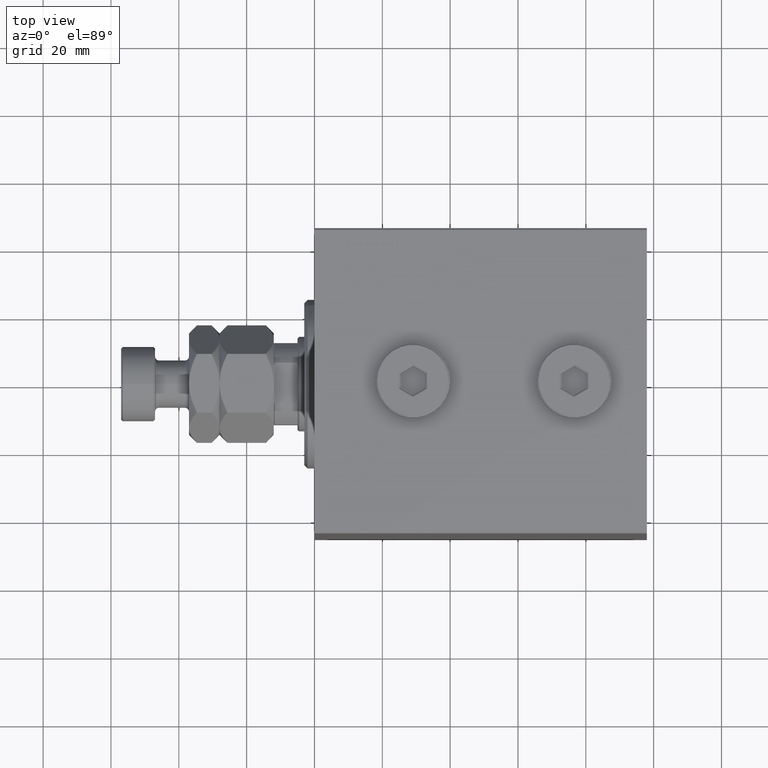
[diagram: clean part render]
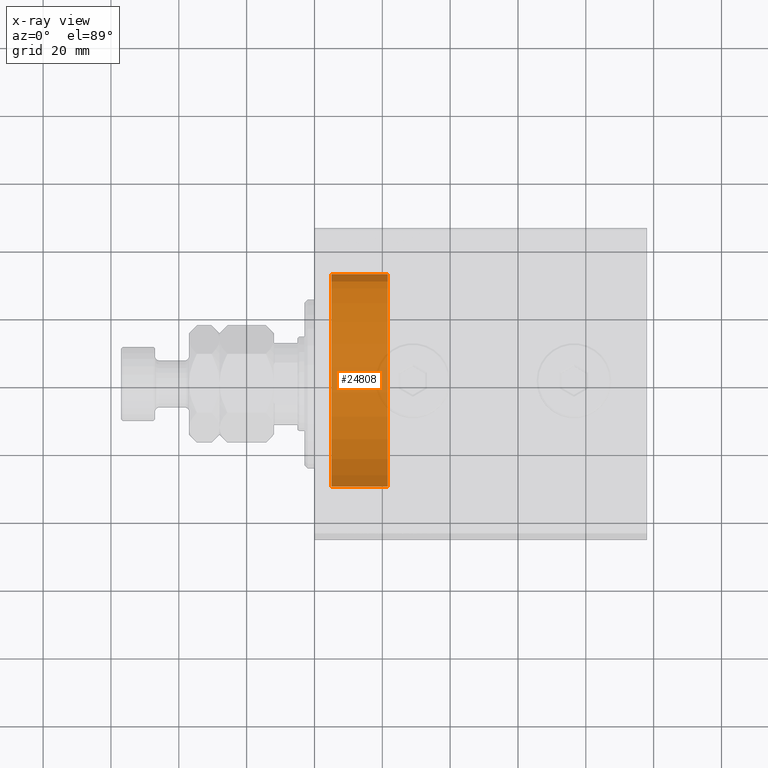
[diagram: x-ray — body ghosted, one internal face saturated and labeled with its STEP entity id]
A machine part, top view, then the same camera in x-ray: the body is ghosted and one INTERNAL B-rep face — a face not visible from any outside direction — is saturated and labeled: STEP entity #24808.
In plain terms, the highlighted cylindrical surface (partial cylindrical patch) has radius 32.5 mm, axis along (-1, 0, 0).
Its self-contained STEP definition (entity closure, byte-faithful):
#355 = DIRECTION ( 'NONE',  ( -1.000000000000000000, 0.000000000000000000, 0.000000000000000000 ) ) ;
#482 = EDGE_CURVE ( 'NONE', #17149, #13885, #1434, .T. ) ;
#825 = DIRECTION ( 'NONE',  ( 0.000000000000000000, 0.000000000000000000, 1.000000000000000000 ) ) ;
#1434 = LINE ( 'NONE', #26739, #20442 ) ;
#1623 = ORIENTED_EDGE ( 'NONE', *, *, #482, .T. ) ;
#1881 = VECTOR ( 'NONE', #37606, 1000.000000000000000 ) ;
#2209 = VERTEX_POINT ( 'NONE', #39750 ) ;
#3609 = AXIS2_PLACEMENT_3D ( 'NONE', #3683, #18578, #14319 ) ;
#3683 = CARTESIAN_POINT ( 'NONE',  ( -21.60000000000000142, 0.000000000000000000, 0.000000000000000000 ) ) ;
#5610 = ORIENTED_EDGE ( 'NONE', *, *, #37915, .F. ) ;
#6129 = FACE_OUTER_BOUND ( 'NONE', #14934, .T. ) ;
#6555 = ORIENTED_EDGE ( 'NONE', *, *, #10134, .F. ) ;
#9438 = CARTESIAN_POINT ( 'NONE',  ( -21.60000000000000142, 0.000000000000000000, 0.000000000000000000 ) ) ;
#10134 = EDGE_CURVE ( 'NONE', #2209, #18609, #28833, .T. ) ;
#13466 = DIRECTION ( 'NONE',  ( 0.000000000000000000, 0.000000000000000000, -1.000000000000000000 ) ) ;
#13885 = VERTEX_POINT ( 'NONE', #23439 ) ;
#14319 = DIRECTION ( 'NONE',  ( 0.000000000000000000, 0.000000000000000000, 1.000000000000000000 ) ) ;
#14934 = EDGE_LOOP ( 'NONE', ( #5610, #1623, #26171, #6555 ) ) ;
#17149 = VERTEX_POINT ( 'NONE', #19708 ) ;
#18578 = DIRECTION ( 'NONE',  ( -1.000000000000000000, 0.000000000000000000, 0.000000000000000000 ) ) ;
#18609 = VERTEX_POINT ( 'NONE', #43944 ) ;
#18699 = AXIS2_PLACEMENT_3D ( 'NONE', #36813, #355, #825 ) ;
#19708 = CARTESIAN_POINT ( 'NONE',  ( -21.60000000000000142, 3.980102097228897837E-15, 32.50000000000000000 ) ) ;
#20442 = VECTOR ( 'NONE', #22963, 1000.000000000000000 ) ;
#20788 = CYLINDRICAL_SURFACE ( 'NONE', #21488, 32.50000000000000000 ) ;
#21488 = AXIS2_PLACEMENT_3D ( 'NONE', #9438, #46103, #13466 ) ;
#22963 = DIRECTION ( 'NONE',  ( 1.000000000000000000, -0.000000000000000000, -0.000000000000000000 ) ) ;
#23439 = CARTESIAN_POINT ( 'NONE',  ( -5.000000000000000000, 3.980102097228897837E-15, 32.50000000000000000 ) ) ;
#24808 = ADVANCED_FACE ( 'NONE', ( #6129 ), #20788, .T. ) ;
#26171 = ORIENTED_EDGE ( 'NONE', *, *, #44884, .T. ) ;
#26739 = CARTESIAN_POINT ( 'NONE',  ( -21.60000000000000142, 3.980102097228897837E-15, 32.50000000000000000 ) ) ;
#27796 = CIRCLE ( 'NONE', #3609, 32.50000000000000000 ) ;
#28833 = LINE ( 'NONE', #33343, #1881 ) ;
#33343 = CARTESIAN_POINT ( 'NONE',  ( -21.60000000000000142, 0.000000000000000000, -32.50000000000000000 ) ) ;
#36813 = CARTESIAN_POINT ( 'NONE',  ( -5.000000000000000000, 0.000000000000000000, 0.000000000000000000 ) ) ;
#37606 = DIRECTION ( 'NONE',  ( 1.000000000000000000, -0.000000000000000000, -0.000000000000000000 ) ) ;
#37915 = EDGE_CURVE ( 'NONE', #17149, #2209, #27796, .T. ) ;
#39750 = CARTESIAN_POINT ( 'NONE',  ( -21.60000000000000142, 0.000000000000000000, -32.50000000000000000 ) ) ;
#43619 = CIRCLE ( 'NONE', #18699, 32.50000000000000000 ) ;
#43944 = CARTESIAN_POINT ( 'NONE',  ( -5.000000000000000000, 0.000000000000000000, -32.50000000000000000 ) ) ;
#44884 = EDGE_CURVE ( 'NONE', #13885, #18609, #43619, .T. ) ;
#46103 = DIRECTION ( 'NONE',  ( 1.000000000000000000, -0.000000000000000000, -0.000000000000000000 ) ) ;